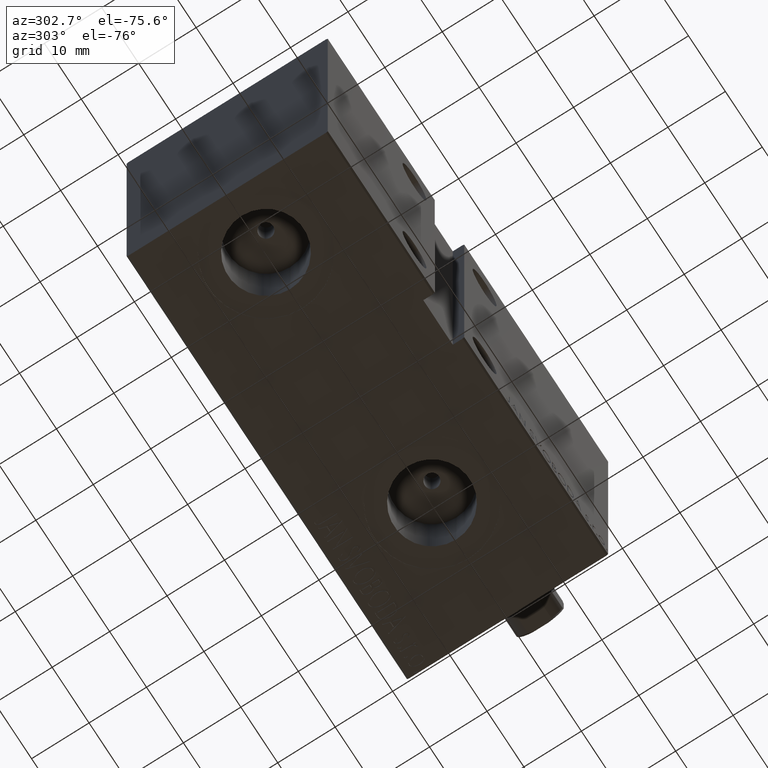
[diagram: clean part render]
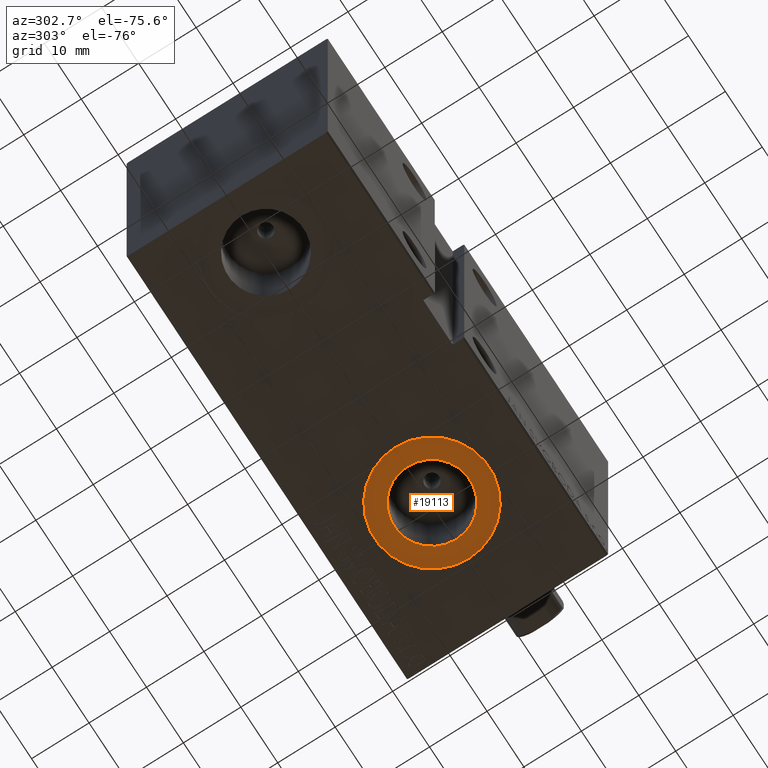
[diagram: same view with one face highlighted and labeled with its STEP entity id]
A machine part, auxiliary view. The second image highlights one B-rep face of the part: STEP entity #19113.
In plain terms, the highlighted planar face has unit normal (-0, 0, -1).
Its self-contained STEP definition (entity closure, byte-faithful):
#520 = PLANE ( 'NONE',  #28625 ) ;
#1510 = EDGE_LOOP ( 'NONE', ( #8614, #3681 ) ) ;
#2593 = ORIENTED_EDGE ( 'NONE', *, *, #7827, .T. ) ;
#3681 = ORIENTED_EDGE ( 'NONE', *, *, #5884, .F. ) ;
#5884 = EDGE_CURVE ( 'NONE', #22611, #40420, #26877, .T. ) ;
#6463 = DIRECTION ( 'NONE',  ( 0.000000000000000000, 0.000000000000000000, -1.000000000000000000 ) ) ;
#6888 = DIRECTION ( 'NONE',  ( -1.000000000000000000, 0.000000000000000000, 0.000000000000000000 ) ) ;
#7262 = AXIS2_PLACEMENT_3D ( 'NONE', #23072, #36456, #37307 ) ;
#7682 = CARTESIAN_POINT ( 'NONE',  ( 10.50000000000000355, -5.452980245086756226E-15, -27.40000000000000568 ) ) ;
#7827 = EDGE_CURVE ( 'NONE', #17431, #22092, #36053, .T. ) ;
#8614 = ORIENTED_EDGE ( 'NONE', *, *, #24644, .F. ) ;
#13573 = EDGE_CURVE ( 'NONE', #22092, #17431, #27743, .T. ) ;
#13622 = CARTESIAN_POINT ( 'NONE',  ( 13.92000000000000171, -2.726986211408916281E-15, -27.40000000000000568 ) ) ;
#14326 = CARTESIAN_POINT ( 'NONE',  ( 20.50000000000000355, -5.452980245086756226E-15, -27.40000000000000568 ) ) ;
#17431 = VERTEX_POINT ( 'NONE', #7682 ) ;
#18908 = CARTESIAN_POINT ( 'NONE',  ( 27.08000000000000540, -1.921168617569958028E-15, -27.40000000000000568 ) ) ;
#19113 = ADVANCED_FACE ( 'NONE', ( #37296, #30727 ), #520, .T. ) ;
#19179 = CARTESIAN_POINT ( 'NONE',  ( 0.000000000000000000, 0.000000000000000000, -27.40000000000000568 ) ) ;
#19431 = ORIENTED_EDGE ( 'NONE', *, *, #13573, .T. ) ;
#20484 = DIRECTION ( 'NONE',  ( 0.000000000000000000, 0.000000000000000000, -1.000000000000000000 ) ) ;
#20911 = AXIS2_PLACEMENT_3D ( 'NONE', #36906, #6463, #6888 ) ;
#21336 = DIRECTION ( 'NONE',  ( -1.000000000000000000, 0.000000000000000000, 0.000000000000000000 ) ) ;
#21405 = CARTESIAN_POINT ( 'NONE',  ( 20.50000000000000355, -5.452980245086756226E-15, -27.40000000000000568 ) ) ;
#22092 = VERTEX_POINT ( 'NONE', #24493 ) ;
#22611 = VERTEX_POINT ( 'NONE', #18908 ) ;
#23072 = CARTESIAN_POINT ( 'NONE',  ( 20.50000000000000355, -2.726986211408916281E-15, -27.40000000000000568 ) ) ;
#24493 = CARTESIAN_POINT ( 'NONE',  ( 30.50000000000000711, -4.228333445939403167E-15, -27.40000000000000568 ) ) ;
#24644 = EDGE_CURVE ( 'NONE', #40420, #22611, #39816, .T. ) ;
#26877 = CIRCLE ( 'NONE', #7262, 6.580000000000002736 ) ;
#26940 = AXIS2_PLACEMENT_3D ( 'NONE', #14326, #20484, #21336 ) ;
#27003 = DIRECTION ( 'NONE',  ( -1.000000000000000000, 0.000000000000000000, -0.000000000000000000 ) ) ;
#27743 = CIRCLE ( 'NONE', #30576, 10.00000000000000000 ) ;
#28428 = DIRECTION ( 'NONE',  ( 0.000000000000000000, 0.000000000000000000, -1.000000000000000000 ) ) ;
#28625 = AXIS2_PLACEMENT_3D ( 'NONE', #19179, #32558, #27003 ) ;
#30576 = AXIS2_PLACEMENT_3D ( 'NONE', #21405, #28428, #34783 ) ;
#30727 = FACE_OUTER_BOUND ( 'NONE', #33528, .T. ) ;
#32558 = DIRECTION ( 'NONE',  ( 0.000000000000000000, 0.000000000000000000, -1.000000000000000000 ) ) ;
#33528 = EDGE_LOOP ( 'NONE', ( #2593, #19431 ) ) ;
#34783 = DIRECTION ( 'NONE',  ( -1.000000000000000000, 0.000000000000000000, 0.000000000000000000 ) ) ;
#36053 = CIRCLE ( 'NONE', #26940, 10.00000000000000000 ) ;
#36456 = DIRECTION ( 'NONE',  ( 0.000000000000000000, 0.000000000000000000, -1.000000000000000000 ) ) ;
#36906 = CARTESIAN_POINT ( 'NONE',  ( 20.50000000000000355, -2.726986211408916281E-15, -27.40000000000000568 ) ) ;
#37296 = FACE_BOUND ( 'NONE', #1510, .T. ) ;
#37307 = DIRECTION ( 'NONE',  ( -1.000000000000000000, 0.000000000000000000, 0.000000000000000000 ) ) ;
#39816 = CIRCLE ( 'NONE', #20911, 6.580000000000002736 ) ;
#40420 = VERTEX_POINT ( 'NONE', #13622 ) ;